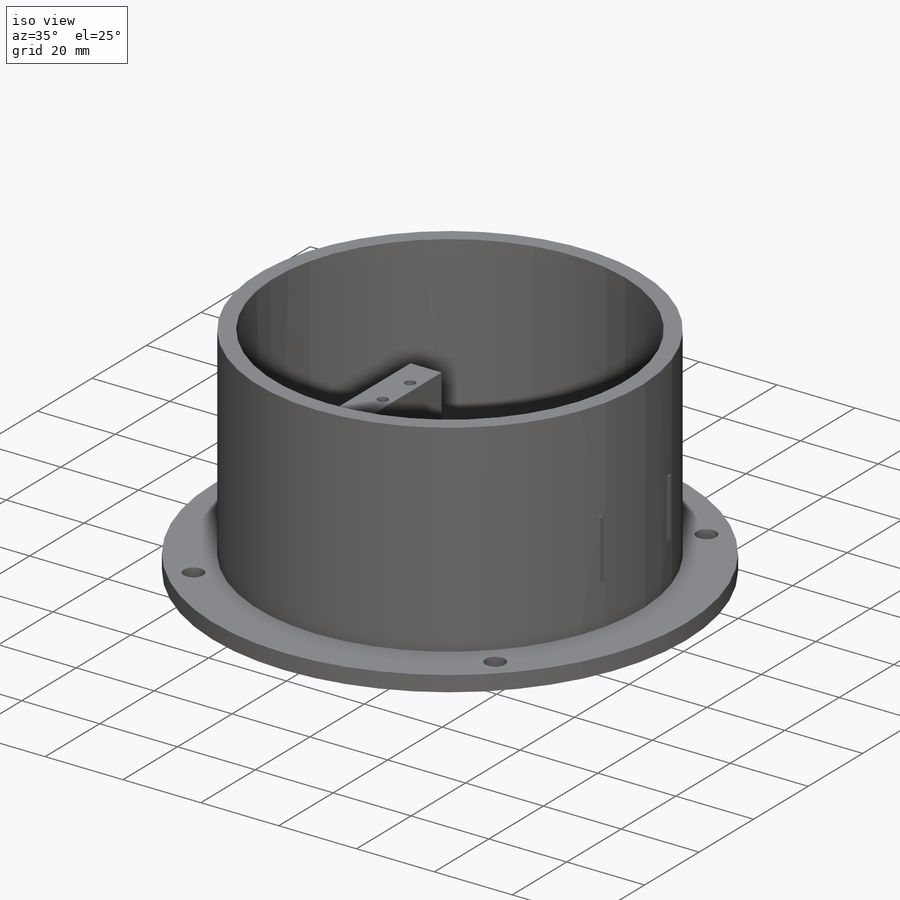
[diagram: iso view]
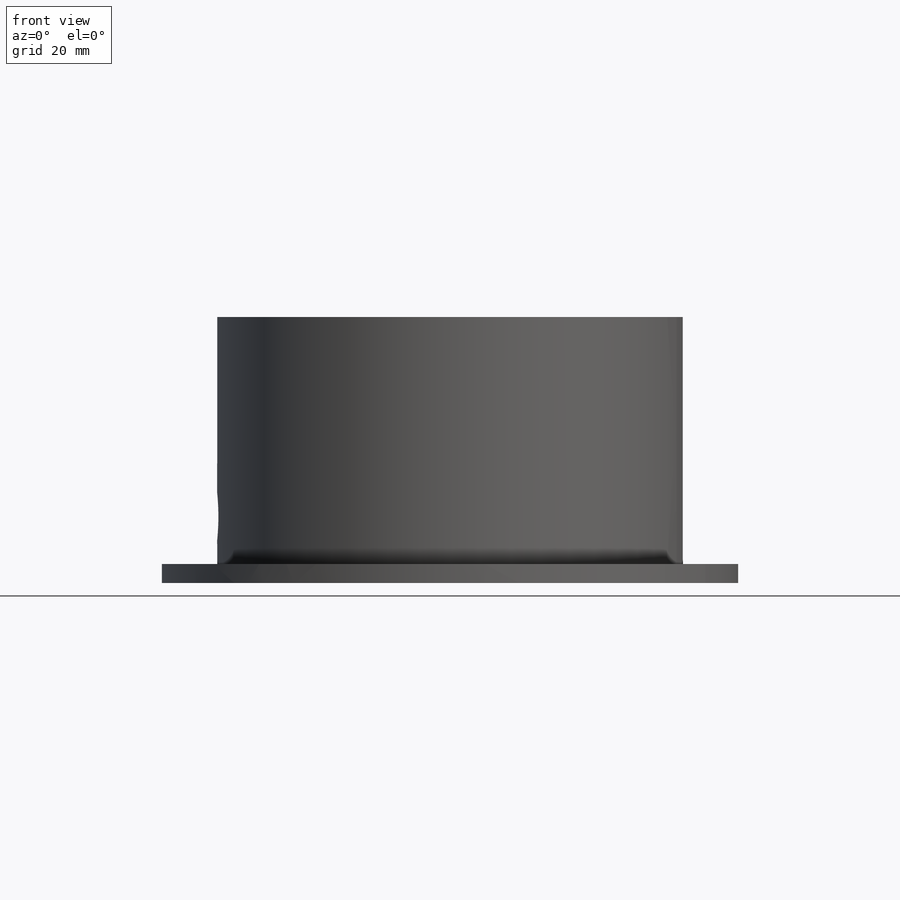
[diagram: front view]
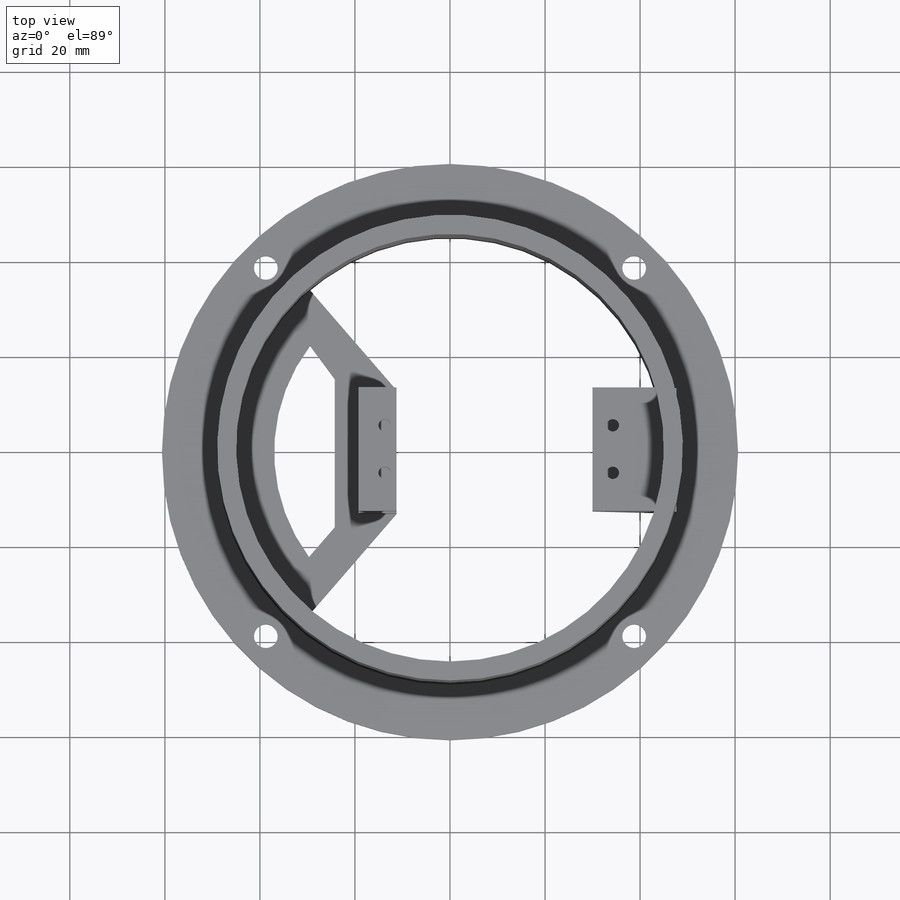
[diagram: top view]
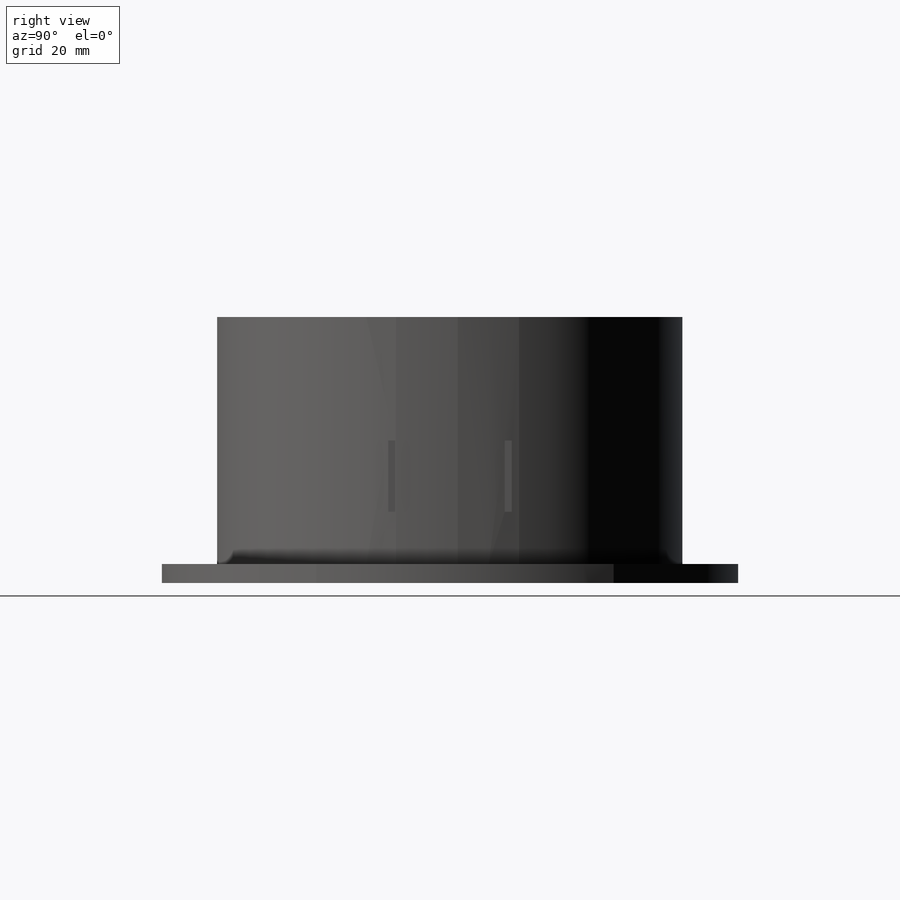
[diagram: right view]
SOLIDWORKS PART (.sldprt)
format: sldprt  version: not decoded by parser v0  size: 434,176 bytes
history: native  units: mm
features: sketch x13, plane x7, extrude x6, cut_extrude x6, material x1, revolve x1 (+10 scaffold rows collapsed)
feature tree (44):
  scaffold x10  (default folders/planes/origin — collapsed)
  material  "Malzeme <belirli değil>"
  plane  "Ön Düzlem"
  plane  "Üst Düzlem"
  plane  "Sağ Düzlem"
  sketch  "Çizim1"  dims[c1.D1=90.0mm c1.D2=45.0mm c1.D3=121.25mm c1.D4=60.625mm c1.D5=4.0mm c1.D6=52.0mm c1.D7=4.0mm c2.D1=52.0mm c2.D2=45.0mm]
  revolve  "Döndür5"  Angle=360deg
  plane  "Düzlem3"
  sketch  "Çizim7"  dims[D1=18.0mm D2=8.0mm D3=26.0mm D4=13.0mm]
  extrude  "Yükseklik-Ekstrüzyon3"  Depth=15mm
  sketch  "Çizim8"  dims[c1.D1=74.0mm c1.D2=74.0mm c1.D6=90.0mm c2.D2=11.25mm c2.D3=8.0mm c2.D5=8.0mm c2.D7=8.0mm c2.D4=5.0mm]
  extrude  "Yükseklik-Ekstrüzyon4"  Depth=4mm
  sketch  "Çizim9"  dims[D1=8.0mm]
  extrude  "Yükseklik-Ekstrüzyon5"  Depth=38mm
  plane  "Düzlem4"
  sketch  "Çizim11"  dims[D2=10.0mm D1=14.0mm]
  cut_extrude  "Kes-Ekstrüzyon1"  Depth=44mm
  sketch  "Çizim12"  dims[c1.D1=~109.539801mm c1.D4=5.0mm c2.D1=5.815mm c2.D2=~35.866389mm c3.D2=45.0deg c3.D3=54.81mm c4.D3=45.0deg]
  cut_extrude  "Kes-Ekstrüzyon2"  Depth=44mm
  plane  "Düzlem5"
  sketch  "Çizim14"  dims[c1.D4=2.6mm c1.D5=2.6mm c1.D1=10.0mm c1.D2=5.0mm c1.D3=2.5mm c2.D5=2.0]
  cut_extrude  "Kes-Ekstrüzyon3"  Depth=4mm
  sketch  "Çizim15"  dims[D1=26.0mm]
  cut_extrude  "Kes-Ekstrüzyon4"  Depth=10mm
  plane  "Düzlem7"
  sketch  "Çizim16"
  extrude  "Yükseklik-Ekstrüzyon6"  Depth=26mm
  sketch  "Çizim17"
  cut_extrude  "Kes-Ekstrüzyon5"  Depth=30mm
  sketch  "Çizim18"
  extrude  "Yükseklik-Ekstrüzyon7"  Depth=26mm
  sketch  "Çizim19"
  extrude  "Yükseklik-Ekstrüzyon8"  Depth=26mm
  sketch  "Çizim20"  dims[D1=5.0mm]
  cut_extrude  "Kes-Ekstrüzyon6"  Depth=26mm
decode coverage: 22 of 26 modeling features carry decoded parameters
note: ~ marks probable driven/reference dimensions
note: suppression state not decoded; provenance and decode notes live in map.json
